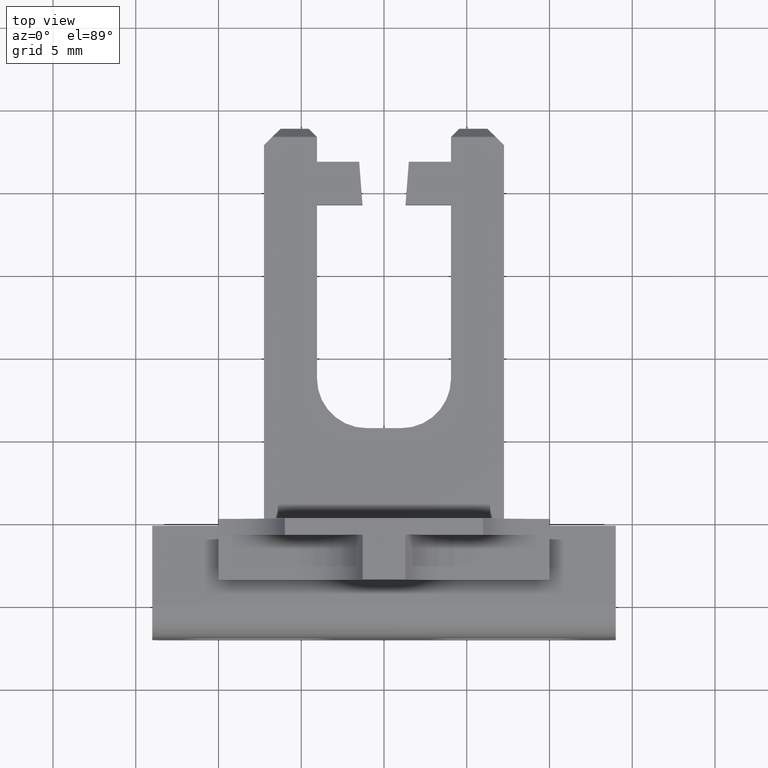
[diagram: clean part render]
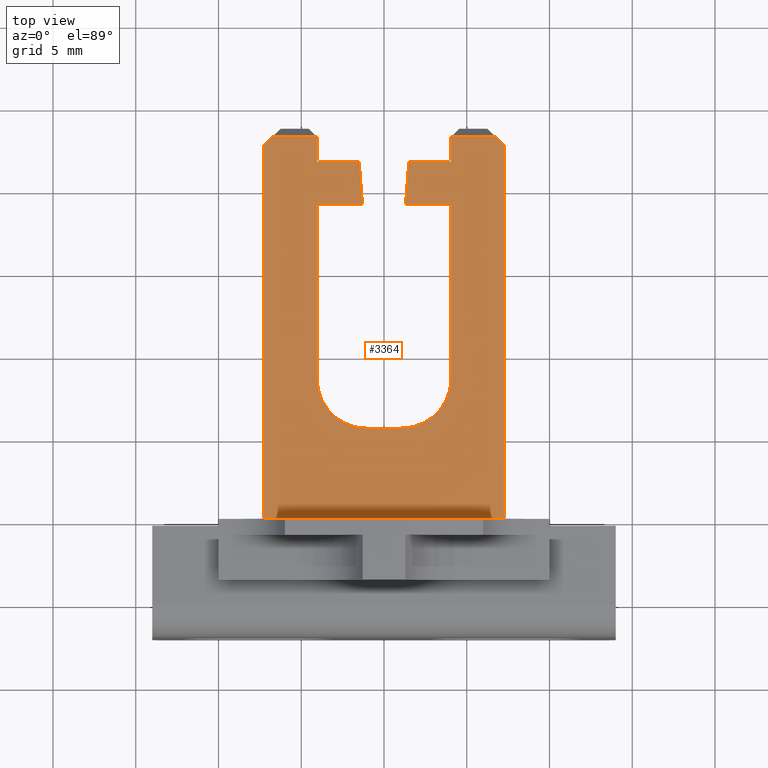
[diagram: same view with one face highlighted and labeled with its STEP entity id]
A machine part, top view. The second image highlights one B-rep face of the part: STEP entity #3364.
In plain terms, the highlighted planar face has unit normal (0, 0, -1).
Its self-contained STEP definition (entity closure, byte-faithful):
#17=CARTESIAN_POINT('',(-7.249999999999986,5.124601836602510,11.504601836602550));
#18=VERTEX_POINT('',#17);
#25=CARTESIAN_POINT('',(-7.249999999999986,27.724601836602506,11.504601836602548));
#26=VERTEX_POINT('',#25);
#27=CARTESIAN_POINT('',(-7.250000000000000,5.124601836602510,11.504601836602550));
#28=DIRECTION('',(0.0,1.0,0.0));
#29=VECTOR('',#28,22.599999999999994);
#30=LINE('',#27,#29);
#31=EDGE_CURVE('',#18,#26,#30,.T.);
#2275=CARTESIAN_POINT('',(7.250000000000000,5.124601836602510,11.504601836602550));
#2276=VERTEX_POINT('',#2275);
#2283=CARTESIAN_POINT('',(-7.249999999999986,5.124601836602510,11.504601836602550));
#2284=DIRECTION('',(1.0,0.0,0.0));
#2285=VECTOR('',#2284,14.499999999999995);
#2286=LINE('',#2283,#2285);
#2287=EDGE_CURVE('',#18,#2276,#2286,.T.);
#2599=CARTESIAN_POINT('',(4.050000000000011,28.224601836602499,11.504601836602548));
#2600=VERTEX_POINT('',#2599);
#2657=CARTESIAN_POINT('',(-4.049999999999997,28.224601836602506,11.504601836602548));
#2658=VERTEX_POINT('',#2657);
#2742=CARTESIAN_POINT('',(-6.749999999999972,28.224601836602517,11.504601836602548));
#2743=VERTEX_POINT('',#2742);
#2750=CARTESIAN_POINT('',(-4.049999999999997,28.224601836602499,11.504601836602548));
#2751=DIRECTION('',(-1.0,0.0,0.0));
#2752=VECTOR('',#2751,2.699999999999976);
#2753=LINE('',#2750,#2752);
#2754=EDGE_CURVE('',#2658,#2743,#2753,.T.);
#2765=CARTESIAN_POINT('',(6.750000000000014,28.224601836602506,11.504601836602548));
#2766=VERTEX_POINT('',#2765);
#2767=CARTESIAN_POINT('',(6.750000000000014,28.224601836602506,11.504601836602548));
#2768=DIRECTION('',(-1.0,0.0,0.0));
#2769=VECTOR('',#2768,2.699999999999997);
#2770=LINE('',#2767,#2769);
#2771=EDGE_CURVE('',#2766,#2600,#2770,.T.);
#2813=CARTESIAN_POINT('',(4.050000000000011,26.724601836602506,11.504601836602548));
#2814=VERTEX_POINT('',#2813);
#2815=CARTESIAN_POINT('',(4.050000000000011,26.724601836602506,11.504601836602548));
#2816=DIRECTION('',(0.0,1.0,0.0));
#2817=VECTOR('',#2816,1.499999999999993);
#2818=LINE('',#2815,#2817);
#2819=EDGE_CURVE('',#2814,#2600,#2818,.T.);
#2844=CARTESIAN_POINT('',(1.500000000000014,26.724601836602506,11.504601836602548));
#2845=VERTEX_POINT('',#2844);
#2846=CARTESIAN_POINT('',(1.500000000000014,26.724601836602506,11.504601836602548));
#2847=DIRECTION('',(1.0,0.0,0.0));
#2848=VECTOR('',#2847,2.550000000000006);
#2849=LINE('',#2846,#2848);
#2850=EDGE_CURVE('',#2845,#2814,#2849,.T.);
#2875=CARTESIAN_POINT('',(1.300000000000011,24.124601836602508,11.504601836602548));
#2876=VERTEX_POINT('',#2875);
#2877=CARTESIAN_POINT('',(1.300000000000011,24.124601836602508,11.504601836602548));
#2878=DIRECTION('',(0.076696498884737,0.997054485501582,0.0));
#2879=VECTOR('',#2878,2.607680962081061);
#2880=LINE('',#2877,#2879);
#2881=EDGE_CURVE('',#2876,#2845,#2880,.T.);
#2906=CARTESIAN_POINT('',(4.050000000000011,24.124601836602508,11.504601836602548));
#2907=VERTEX_POINT('',#2906);
#2908=CARTESIAN_POINT('',(4.050000000000011,24.124601836602508,11.504601836602548));
#2909=DIRECTION('',(-1.0,0.0,0.0));
#2910=VECTOR('',#2909,2.750000000000006);
#2911=LINE('',#2908,#2910);
#2912=EDGE_CURVE('',#2907,#2876,#2911,.T.);
#2945=CARTESIAN_POINT('',(4.050000000000011,13.624601836602512,11.504601836602550));
#2946=VERTEX_POINT('',#2945);
#2953=CARTESIAN_POINT('',(4.050000000000011,13.624601836602508,11.504601836602550));
#2954=DIRECTION('',(0.0,1.0,0.0));
#2955=VECTOR('',#2954,10.499999999999996);
#2956=LINE('',#2953,#2955);
#2957=EDGE_CURVE('',#2946,#2907,#2956,.T.);
#2977=CARTESIAN_POINT('',(1.050000000000011,10.624601836602512,11.504601836602550));
#2978=VERTEX_POINT('',#2977);
#2985=CARTESIAN_POINT('',(1.050000000000011,13.624601836602512,11.504601836602550));
#2986=DIRECTION('',(0.0,-6.123234E-017,-1.0));
#2987=DIRECTION('',(5.551115E-017,-1.0,6.123234E-017));
#2988=AXIS2_PLACEMENT_3D('',#2985,#2986,#2987);
#2989=CIRCLE('',#2988,3.0);
#2990=EDGE_CURVE('',#2946,#2978,#2989,.T.);
#3001=CARTESIAN_POINT('',(-1.049999999999997,10.624601836602512,11.504601836602550));
#3002=VERTEX_POINT('',#3001);
#3003=CARTESIAN_POINT('',(-1.049999999999997,10.624601836602512,11.504601836602550));
#3004=DIRECTION('',(1.0,0.0,0.0));
#3005=VECTOR('',#3004,2.100000000000014);
#3006=LINE('',#3003,#3005);
#3007=EDGE_CURVE('',#3002,#2978,#3006,.T.);
#3041=CARTESIAN_POINT('',(-4.049999999999997,13.624601836602512,11.504601836602550));
#3042=VERTEX_POINT('',#3041);
#3049=CARTESIAN_POINT('',(-1.049999999999997,13.624601836602512,11.504601836602550));
#3050=DIRECTION('',(0.0,-6.123234E-017,-1.0));
#3051=DIRECTION('',(5.551115E-017,-1.0,6.123234E-017));
#3052=AXIS2_PLACEMENT_3D('',#3049,#3050,#3051);
#3053=CIRCLE('',#3052,3.0);
#3054=EDGE_CURVE('',#3002,#3042,#3053,.T.);
#3065=CARTESIAN_POINT('',(-4.049999999999997,24.124601836602508,11.504601836602548));
#3066=VERTEX_POINT('',#3065);
#3067=CARTESIAN_POINT('',(-4.049999999999997,24.124601836602508,11.504601836602548));
#3068=DIRECTION('',(0.0,-1.0,0.0));
#3069=VECTOR('',#3068,10.499999999999991);
#3070=LINE('',#3067,#3069);
#3071=EDGE_CURVE('',#3066,#3042,#3070,.T.);
#3096=CARTESIAN_POINT('',(-1.299999999999997,24.124601836602508,11.504601836602548));
#3097=VERTEX_POINT('',#3096);
#3098=CARTESIAN_POINT('',(-1.299999999999997,24.124601836602508,11.504601836602548));
#3099=DIRECTION('',(-1.0,0.0,0.0));
#3100=VECTOR('',#3099,2.750000000000006);
#3101=LINE('',#3098,#3100);
#3102=EDGE_CURVE('',#3097,#3066,#3101,.T.);
#3127=CARTESIAN_POINT('',(-1.499999999999986,26.724601836602506,11.504601836602548));
#3128=VERTEX_POINT('',#3127);
#3129=CARTESIAN_POINT('',(-1.499999999999986,26.724601836602506,11.504601836602548));
#3130=DIRECTION('',(0.076696498884737,-0.997054485501582,0.0));
#3131=VECTOR('',#3130,2.607680962081057);
#3132=LINE('',#3129,#3131);
#3133=EDGE_CURVE('',#3128,#3097,#3132,.T.);
#3158=CARTESIAN_POINT('',(-4.049999999999997,26.724601836602506,11.504601836602548));
#3159=VERTEX_POINT('',#3158);
#3160=CARTESIAN_POINT('',(-4.049999999999997,26.724601836602506,11.504601836602548));
#3161=DIRECTION('',(1.0,0.0,0.0));
#3162=VECTOR('',#3161,2.550000000000006);
#3163=LINE('',#3160,#3162);
#3164=EDGE_CURVE('',#3159,#3128,#3163,.T.);
#3196=CARTESIAN_POINT('',(-4.049999999999997,28.224601836602506,11.504601836602548));
#3197=DIRECTION('',(0.0,-1.0,0.0));
#3198=VECTOR('',#3197,1.500000000000000);
#3199=LINE('',#3196,#3198);
#3200=EDGE_CURVE('',#2658,#3159,#3199,.T.);
#3242=CARTESIAN_POINT('',(-6.749999999999972,28.224601836602520,11.504601836602548));
#3243=DIRECTION('',(-0.707106781186547,-0.707106781186548,0.0));
#3244=VECTOR('',#3243,0.707106781186567);
#3245=LINE('',#3242,#3244);
#3246=EDGE_CURVE('',#2743,#26,#3245,.T.);
#3262=CARTESIAN_POINT('',(7.250000000000014,27.724601836602488,11.504601836602548));
#3263=VERTEX_POINT('',#3262);
#3264=CARTESIAN_POINT('',(7.250000000000014,27.724601836602499,11.504601836602548));
#3265=DIRECTION('',(-0.707106781186549,0.707106781186546,0.0));
#3266=VECTOR('',#3265,0.707106781186559);
#3267=LINE('',#3264,#3266);
#3268=EDGE_CURVE('',#3263,#2766,#3267,.T.);
#3292=CARTESIAN_POINT('',(7.250000000000000,27.724601836602488,11.504601836602548));
#3293=DIRECTION('',(0.0,-1.0,0.0));
#3294=VECTOR('',#3293,22.599999999999980);
#3295=LINE('',#3292,#3294);
#3296=EDGE_CURVE('',#3263,#2276,#3295,.T.);
#3337=CARTESIAN_POINT('',(7.975000000000023,29.379601836602525,11.504601836602548));
#3338=DIRECTION('',(0.0,0.0,-1.0));
#3339=DIRECTION('',(0.0,-1.0,0.0));
#3340=AXIS2_PLACEMENT_3D('',#3337,#3338,#3339);
#3341=PLANE('',#3340);
#3342=ORIENTED_EDGE('',*,*,#31,.F.);
#3343=ORIENTED_EDGE('',*,*,#2287,.T.);
#3344=ORIENTED_EDGE('',*,*,#3296,.F.);
#3345=ORIENTED_EDGE('',*,*,#3268,.T.);
#3346=ORIENTED_EDGE('',*,*,#2771,.T.);
#3347=ORIENTED_EDGE('',*,*,#2819,.F.);
#3348=ORIENTED_EDGE('',*,*,#2850,.F.);
#3349=ORIENTED_EDGE('',*,*,#2881,.F.);
#3350=ORIENTED_EDGE('',*,*,#2912,.F.);
#3351=ORIENTED_EDGE('',*,*,#2957,.F.);
#3352=ORIENTED_EDGE('',*,*,#2990,.T.);
#3353=ORIENTED_EDGE('',*,*,#3007,.F.);
#3354=ORIENTED_EDGE('',*,*,#3054,.T.);
#3355=ORIENTED_EDGE('',*,*,#3071,.F.);
#3356=ORIENTED_EDGE('',*,*,#3102,.F.);
#3357=ORIENTED_EDGE('',*,*,#3133,.F.);
#3358=ORIENTED_EDGE('',*,*,#3164,.F.);
#3359=ORIENTED_EDGE('',*,*,#3200,.F.);
#3360=ORIENTED_EDGE('',*,*,#2754,.T.);
#3361=ORIENTED_EDGE('',*,*,#3246,.T.);
#3362=EDGE_LOOP('',(#3342,#3343,#3344,#3345,#3346,#3347,#3348,#3349,#3350,#3351,#3352,#3353,#3354,#3355,#3356,#3357,#3358,#3359,#3360,#3361));
#3363=FACE_OUTER_BOUND('',#3362,.T.);
#3364=ADVANCED_FACE('',(#3363),#3341,.F.);